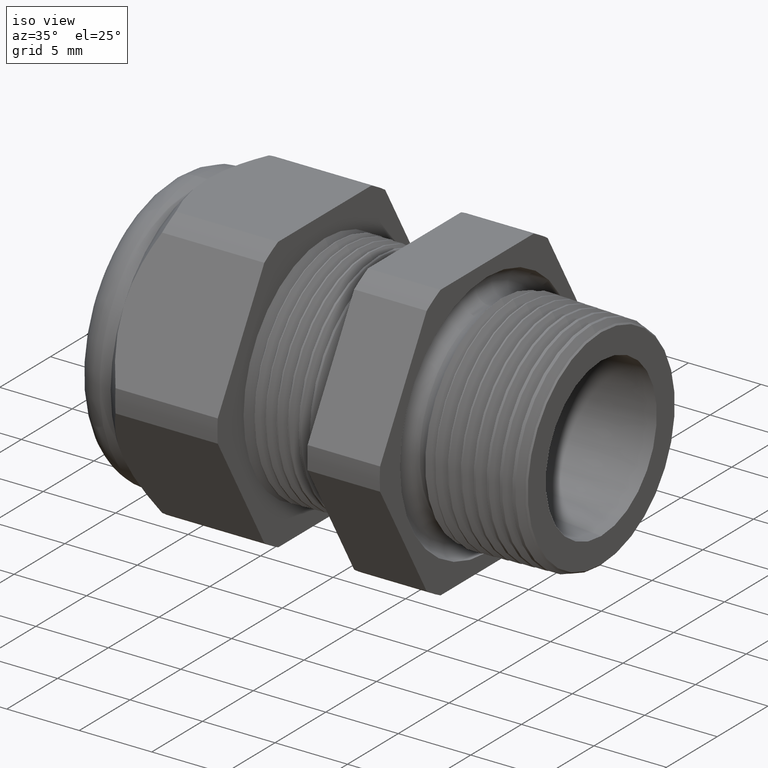
[diagram: clean part render]
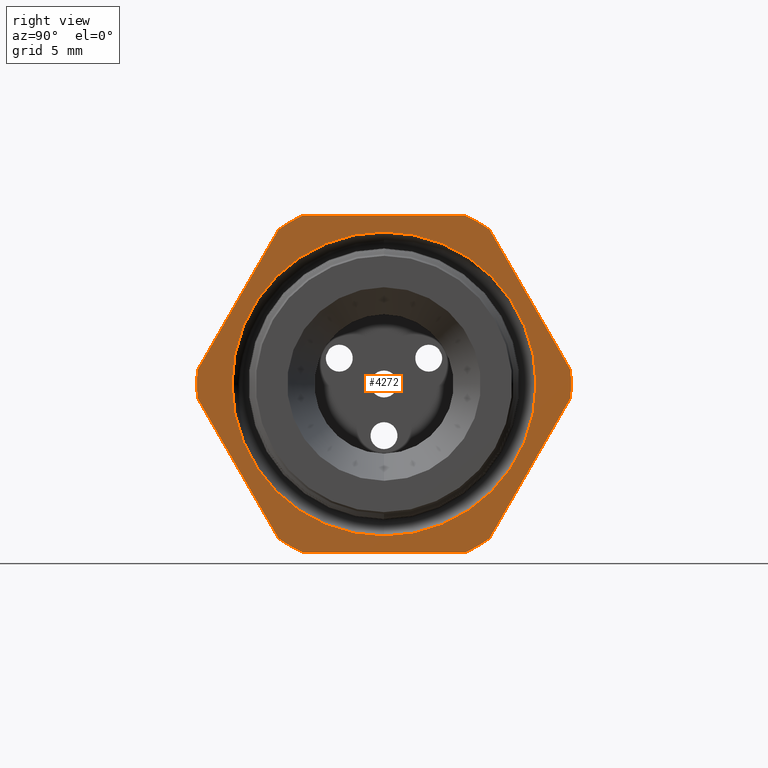
[diagram: tour spotlight — one face highlighted and labeled with its STEP entity id]
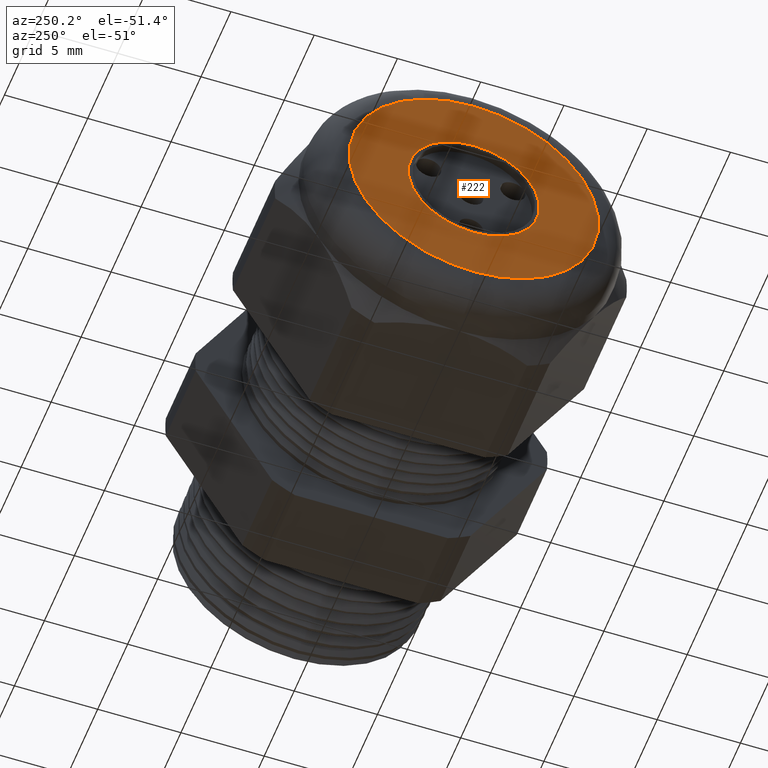
[diagram: tour spotlight — one face highlighted and labeled with its STEP entity id]
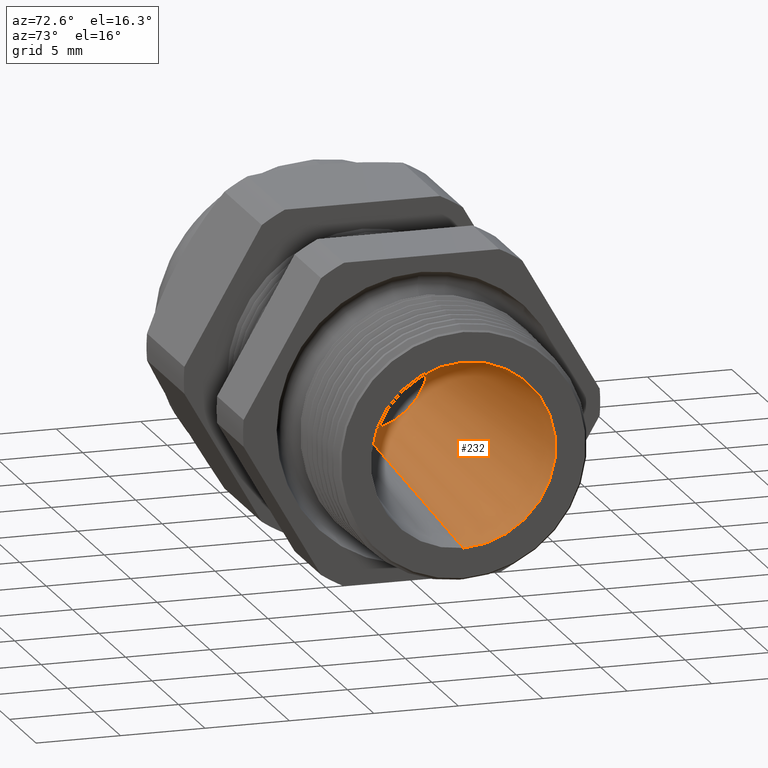
[diagram: tour spotlight — one face highlighted and labeled with its STEP entity id]
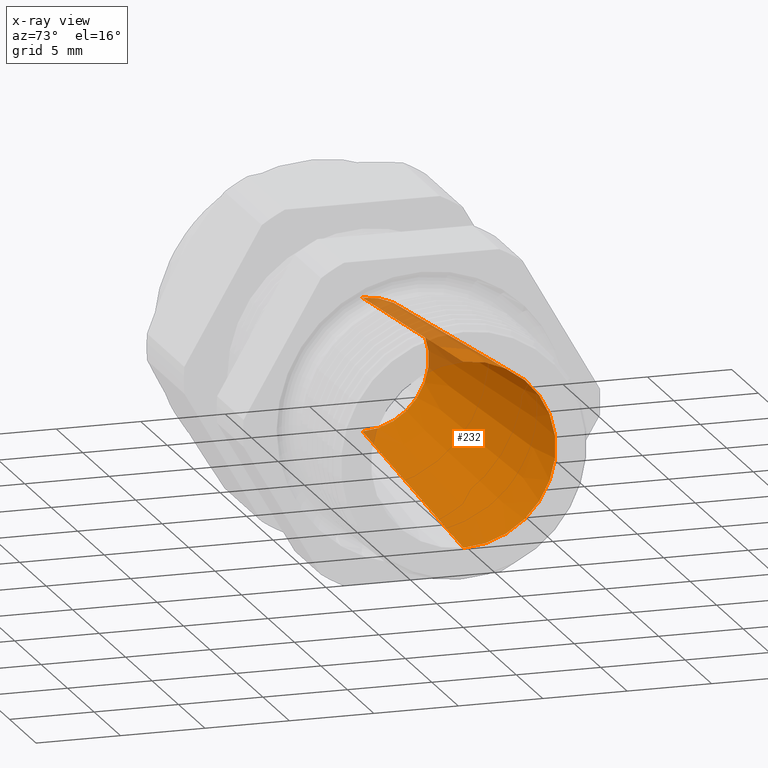
[diagram: x-ray of the same camera — body ghosted, this tour face saturated]
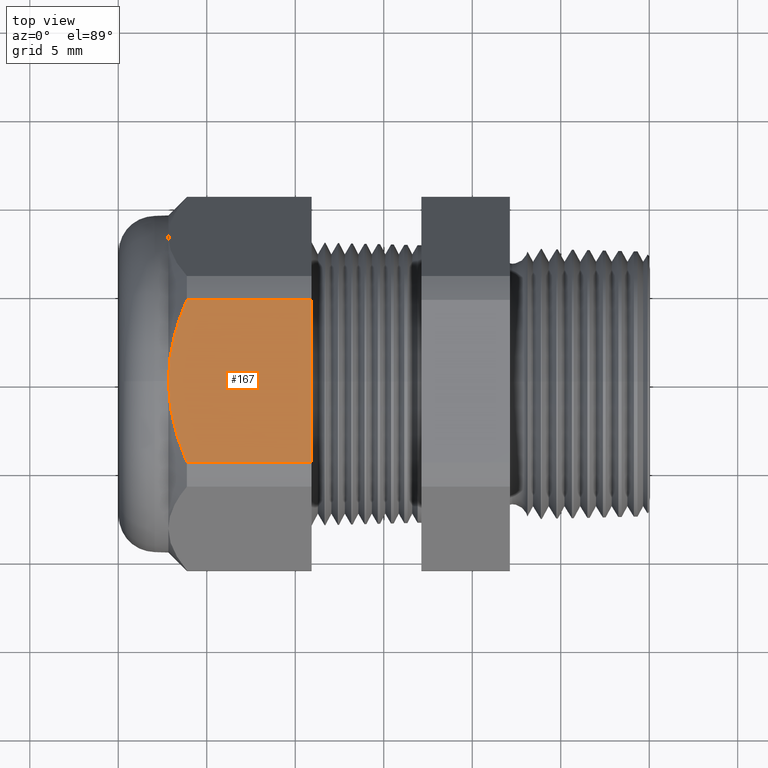
[diagram: tour spotlight — one face highlighted and labeled with its STEP entity id]
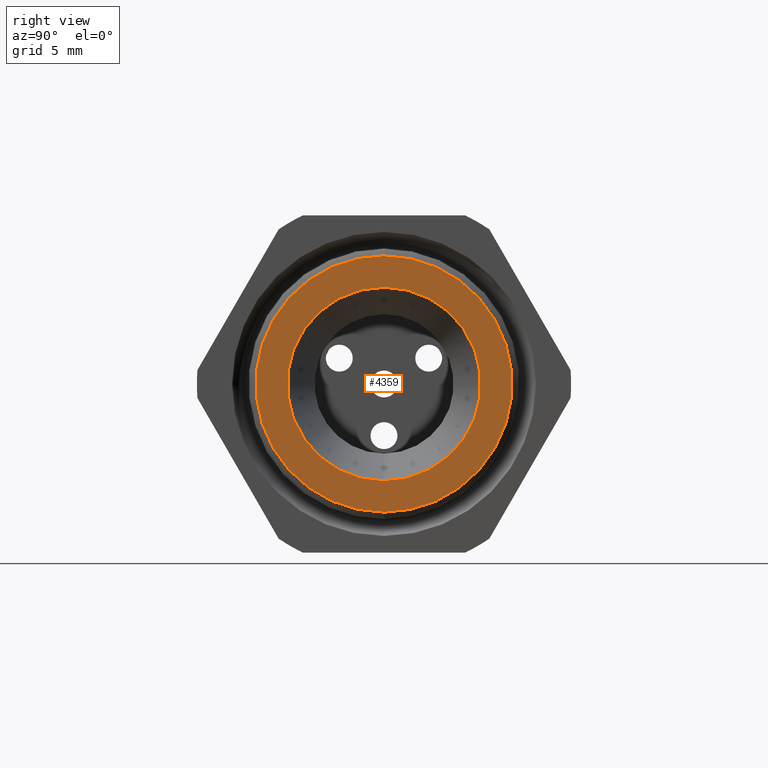
[diagram: tour spotlight — one face highlighted and labeled with its STEP entity id]
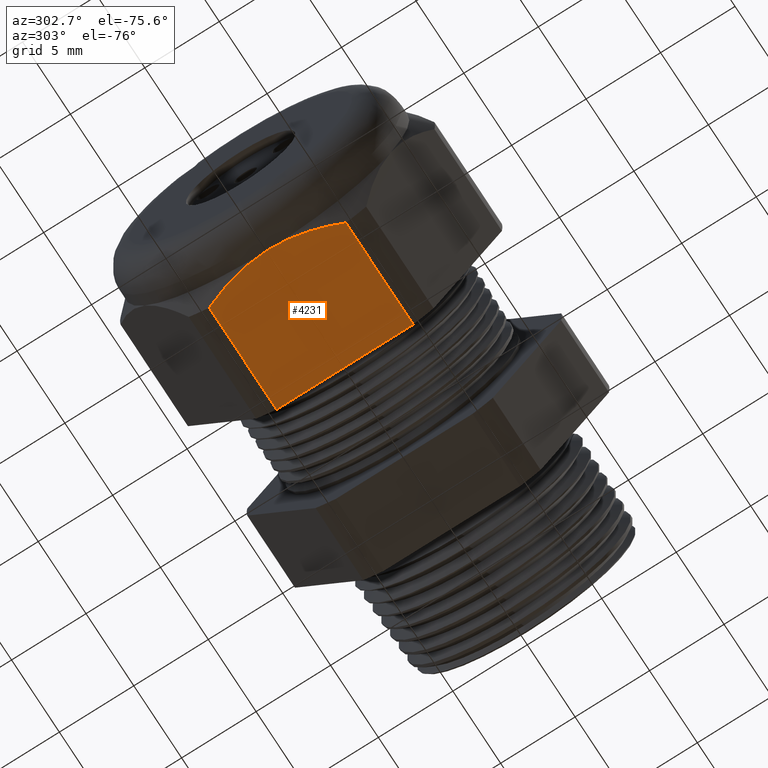
[diagram: tour spotlight — one face highlighted and labeled with its STEP entity id]
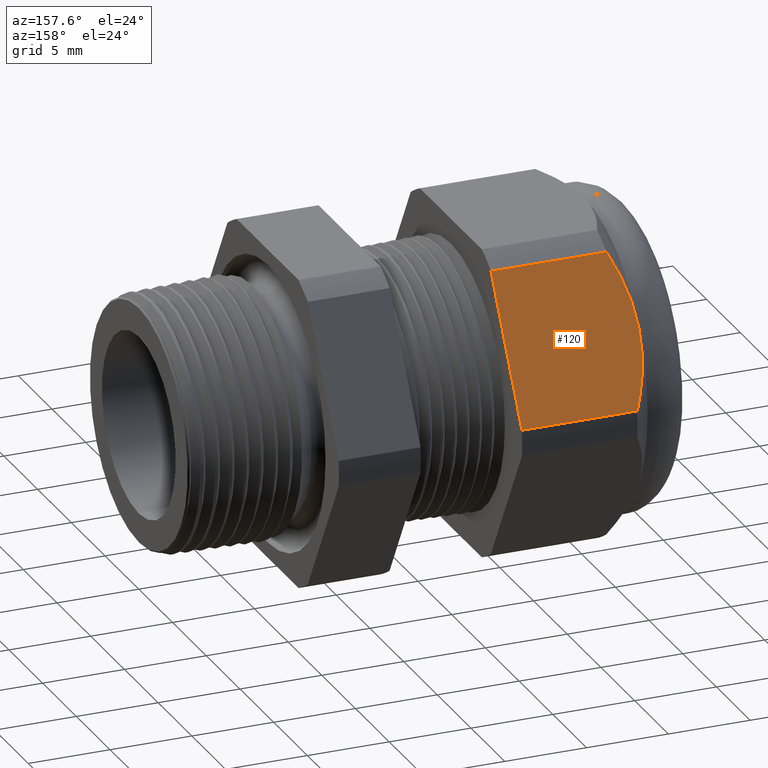
[diagram: tour spotlight — one face highlighted and labeled with its STEP entity id]
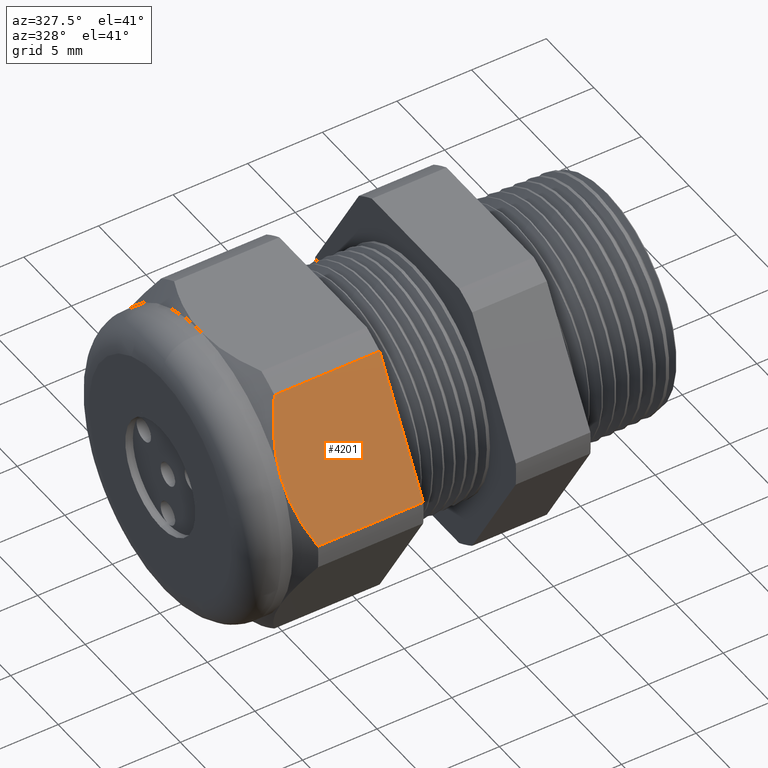
[diagram: tour spotlight — one face highlighted and labeled with its STEP entity id]
A machine part: a face-by-face anatomy tour. The part has 158 B-rep faces; the first image is the clean iso view, then the 8 largest visible faces are spotlighted one at a time (largest first), each with its STEP entity span.

Face 1 — right view, entity #4272. In plain terms, the highlighted planar face has unit normal (1, 0, 0).
Definition (entity closure, byte-faithful):
#684 = VERTEX_POINT ( 'NONE', #2488 ) ;
#685 = VERTEX_POINT ( 'NONE', #2487 ) ;
#687 = EDGE_CURVE ( 'NONE', #685, #684, #2485, .T. ) ;
#2481 = DIRECTION ( 'NONE',  ( 0.0000000000000000000, 0.0000000000000000000, -1.000000000000000000 ) ) ;
#2482 = DIRECTION ( 'NONE',  ( 1.000000000000000000, 0.0000000000000000000, 0.0000000000000000000 ) ) ;
#2483 = CARTESIAN_POINT ( 'NONE',  ( -0.3100000000000000000, 0.0000000000000000000, 0.0000000000000000000 ) ) ;
#2484 = AXIS2_PLACEMENT_3D ( 'NONE', #2483, #2482, #2481 ) ;
#2485 = CIRCLE ( 'NONE', #2484, 0.3380965299414689900 ) ;
#2487 = CARTESIAN_POINT ( 'NONE',  ( -0.3100000000000000000, 4.140488331956472800E-017, 0.3380965299414689900 ) ) ;
#2488 = CARTESIAN_POINT ( 'NONE',  ( -0.3100000000000000000, 0.0000000000000000000, -0.3380965299414689900 ) ) ;
#3980 = DIRECTION ( 'NONE',  ( 0.0000000000000000000, 0.5000000000000001100, 0.8660254037844386000 ) ) ;
#3981 = VECTOR ( 'NONE', #3980, 39.37007874015748900 ) ;
#3982 = CARTESIAN_POINT ( 'NONE',  ( -0.3100000000000000000, 0.5122595264191646100, 0.1372595264191645000 ) ) ;
#3983 = LINE ( 'NONE', #3982, #3981 ) ;
#3984 = CARTESIAN_POINT ( 'NONE',  ( -0.3100000000000000000, 0.2344281053908202900, -0.3439586107409879900 ) ) ;
#4013 = CARTESIAN_POINT ( 'NONE',  ( -0.3100000000000000000, 0.7500000000000001100, 0.3749999999999999400 ) ) ;
#4014 = LINE ( 'NONE', #4013, #4066 ) ;
#4016 = CARTESIAN_POINT ( 'NONE',  ( -0.3100000000000000000, 0.4150909474475088000, 0.03104138925901233200 ) ) ;
#4017 = CARTESIAN_POINT ( 'NONE',  ( -0.3100000000000000000, 0.1806628420566887000, 0.3749999999999999400 ) ) ;
#4022 = DIRECTION ( 'NONE',  ( 0.0000000000000000000, 0.0000000000000000000, -1.000000000000000000 ) ) ;
#4023 = DIRECTION ( 'NONE',  ( 1.000000000000000000, 0.0000000000000000000, 0.0000000000000000000 ) ) ;
#4024 = CARTESIAN_POINT ( 'NONE',  ( -0.3100000000000000000, 0.7500000000000001100, 0.0000000000000000000 ) ) ;
#4025 = AXIS2_PLACEMENT_3D ( 'NONE', #4024, #4023, #4022 ) ;
#4026 = PLANE ( 'NONE',  #4025 ) ;
#4027 = FACE_OUTER_BOUND ( 'NONE', #4264, .T. ) ;
#4028 = FACE_BOUND ( 'NONE', #4270, .T. ) ;
#4029 = DIRECTION ( 'NONE',  ( 0.0000000000000000000, 0.0000000000000000000, -1.000000000000000000 ) ) ;
#4030 = DIRECTION ( 'NONE',  ( 1.000000000000000000, 0.0000000000000000000, 0.0000000000000000000 ) ) ;
#4031 = CARTESIAN_POINT ( 'NONE',  ( -0.3100000000000000000, 0.0000000000000000000, 0.0000000000000000000 ) ) ;
#4032 = AXIS2_PLACEMENT_3D ( 'NONE', #4031, #4030, #4029 ) ;
#4033 = CIRCLE ( 'NONE', #4032, 0.3380965299414689900 ) ;
#4038 = CARTESIAN_POINT ( 'NONE',  ( -0.3100000000000000000, -0.1806628420566883900, -0.3750000000000001100 ) ) ;
#4039 = DIRECTION ( 'NONE',  ( 0.0000000000000000000, 1.000000000000000000, 0.0000000000000000000 ) ) ;
#4040 = VECTOR ( 'NONE', #4039, 39.37007874015748100 ) ;
#4041 = CARTESIAN_POINT ( 'NONE',  ( -0.3100000000000000000, 0.7500000000000001100, -0.3750000000000001100 ) ) ;
#4042 = LINE ( 'NONE', #4041, #4040 ) ;
#4043 = CARTESIAN_POINT ( 'NONE',  ( -0.3100000000000000000, 0.4150909474475088000, -0.03104138925901222000 ) ) ;
#4044 = DIRECTION ( 'NONE',  ( 0.0000000000000000000, 0.0000000000000000000, -1.000000000000000000 ) ) ;
#4045 = DIRECTION ( 'NONE',  ( 1.000000000000000000, 0.0000000000000000000, 0.0000000000000000000 ) ) ;
#4046 = CARTESIAN_POINT ( 'NONE',  ( -0.3100000000000000000, 0.0000000000000000000, 0.0000000000000000000 ) ) ;
#4047 = AXIS2_PLACEMENT_3D ( 'NONE', #4046, #4045, #4044 ) ;
#4048 = CIRCLE ( 'NONE', #4047, 0.4162500000000000100 ) ;
#4049 = DIRECTION ( 'NONE',  ( 0.0000000000000000000, -0.4999999999999998300, 0.8660254037844386000 ) ) ;
#4050 = VECTOR ( 'NONE', #4049, 39.37007874015748900 ) ;
#4051 = CARTESIAN_POINT ( 'NONE',  ( -0.3100000000000000000, 0.5122595264191646100, -0.1372595264191644500 ) ) ;
#4052 = LINE ( 'NONE', #4051, #4050 ) ;
#4053 = DIRECTION ( 'NONE',  ( 0.0000000000000000000, 0.0000000000000000000, -1.000000000000000000 ) ) ;
#4054 = DIRECTION ( 'NONE',  ( 1.000000000000000000, 0.0000000000000000000, 0.0000000000000000000 ) ) ;
#4055 = CARTESIAN_POINT ( 'NONE',  ( -0.3100000000000000000, 0.0000000000000000000, 0.0000000000000000000 ) ) ;
#4056 = AXIS2_PLACEMENT_3D ( 'NONE', #4055, #4054, #4053 ) ;
#4057 = CIRCLE ( 'NONE', #4056, 0.4162499999999999500 ) ;
#4058 = CARTESIAN_POINT ( 'NONE',  ( -0.3100000000000000000, 0.2344281053908206000, 0.3439586107409877100 ) ) ;
#4059 = DIRECTION ( 'NONE',  ( 0.0000000000000000000, 0.0000000000000000000, -1.000000000000000000 ) ) ;
#4060 = DIRECTION ( 'NONE',  ( 1.000000000000000000, 0.0000000000000000000, 0.0000000000000000000 ) ) ;
#4061 = CARTESIAN_POINT ( 'NONE',  ( -0.3100000000000000000, 0.0000000000000000000, 0.0000000000000000000 ) ) ;
#4062 = AXIS2_PLACEMENT_3D ( 'NONE', #4061, #4060, #4059 ) ;
#4063 = CIRCLE ( 'NONE', #4062, 0.4162500000000000100 ) ;
#4064 = CARTESIAN_POINT ( 'NONE',  ( -0.3100000000000000000, -0.1806628420566886700, 0.3749999999999999400 ) ) ;
#4065 = DIRECTION ( 'NONE',  ( 0.0000000000000000000, -1.000000000000000000, 0.0000000000000000000 ) ) ;
#4066 = VECTOR ( 'NONE', #4065, 39.37007874015748100 ) ;
#4081 = DIRECTION ( 'NONE',  ( 0.0000000000000000000, -0.4999999999999998300, -0.8660254037844386000 ) ) ;
#4082 = VECTOR ( 'NONE', #4081, 39.37007874015748900 ) ;
#4083 = CARTESIAN_POINT ( 'NONE',  ( -0.3100000000000000000, -0.1372595264191648300, 0.5122595264191645000 ) ) ;
#4084 = LINE ( 'NONE', #4083, #4082 ) ;
#4085 = CARTESIAN_POINT ( 'NONE',  ( -0.3100000000000000000, -0.2344281053908205100, 0.3439586107409878200 ) ) ;
#4086 = CARTESIAN_POINT ( 'NONE',  ( -0.3100000000000000000, -0.4150909474475088000, 0.03104138925901241800 ) ) ;
#4087 = DIRECTION ( 'NONE',  ( 0.0000000000000000000, 0.0000000000000000000, -1.000000000000000000 ) ) ;
#4088 = DIRECTION ( 'NONE',  ( 1.000000000000000000, 0.0000000000000000000, 0.0000000000000000000 ) ) ;
#4089 = CARTESIAN_POINT ( 'NONE',  ( -0.3100000000000000000, 0.0000000000000000000, 0.0000000000000000000 ) ) ;
#4090 = AXIS2_PLACEMENT_3D ( 'NONE', #4089, #4088, #4087 ) ;
#4091 = CIRCLE ( 'NONE', #4090, 0.4162500000000000100 ) ;
#4092 = CARTESIAN_POINT ( 'NONE',  ( -0.3100000000000000000, -0.4150909474475088000, -0.03104138925901237000 ) ) ;
#4093 = DIRECTION ( 'NONE',  ( 0.0000000000000000000, 0.5000000000000002200, -0.8660254037844384900 ) ) ;
#4094 = VECTOR ( 'NONE', #4093, 39.37007874015748900 ) ;
#4095 = CARTESIAN_POINT ( 'NONE',  ( -0.3100000000000000000, -0.1372595264191642800, -0.5122595264191648300 ) ) ;
#4096 = LINE ( 'NONE', #4095, #4094 ) ;
#4097 = CARTESIAN_POINT ( 'NONE',  ( -0.3100000000000000000, -0.2344281053908202100, -0.3439586107409880500 ) ) ;
#4098 = DIRECTION ( 'NONE',  ( 0.0000000000000000000, 0.0000000000000000000, -1.000000000000000000 ) ) ;
#4099 = DIRECTION ( 'NONE',  ( 1.000000000000000000, 0.0000000000000000000, 0.0000000000000000000 ) ) ;
#4100 = CARTESIAN_POINT ( 'NONE',  ( -0.3100000000000000000, 0.0000000000000000000, 0.0000000000000000000 ) ) ;
#4101 = AXIS2_PLACEMENT_3D ( 'NONE', #4100, #4099, #4098 ) ;
#4102 = CIRCLE ( 'NONE', #4101, 0.4162500000000000100 ) ;
#4110 = CARTESIAN_POINT ( 'NONE',  ( -0.3100000000000000000, 0.1806628420566884800, -0.3750000000000001100 ) ) ;
#4116 = DIRECTION ( 'NONE',  ( 0.0000000000000000000, 0.0000000000000000000, -1.000000000000000000 ) ) ;
#4117 = DIRECTION ( 'NONE',  ( 1.000000000000000000, 0.0000000000000000000, 0.0000000000000000000 ) ) ;
#4118 = CARTESIAN_POINT ( 'NONE',  ( -0.3100000000000000000, 0.0000000000000000000, 0.0000000000000000000 ) ) ;
#4119 = AXIS2_PLACEMENT_3D ( 'NONE', #4118, #4117, #4116 ) ;
#4124 = CIRCLE ( 'NONE', #4119, 0.4162500000000000100 ) ;
#4259 = VERTEX_POINT ( 'NONE', #3984 ) ;
#4260 = EDGE_CURVE ( 'NONE', #4259, #4342, #3983, .T. ) ;
#4263 = ORIENTED_EDGE ( 'NONE', *, *, #4260, .T. ) ;
#4264 = EDGE_LOOP ( 'NONE', ( #4263, #4290, #4288, #4286, #4280, #4282, #4357, #4356, #4350, #4346, #4344, #4368 ) ) ;
#4267 = ORIENTED_EDGE ( 'NONE', *, *, #4269, .F. ) ;
#4268 = ORIENTED_EDGE ( 'NONE', *, *, #687, .F. ) ;
#4269 = EDGE_CURVE ( 'NONE', #684, #685, #4033, .T. ) ;
#4270 = EDGE_LOOP ( 'NONE', ( #4267, #4268 ) ) ;
#4272 = ADVANCED_FACE ( 'NONE', ( #4028, #4027 ), #4026, .T. ) ;
#4275 = VERTEX_POINT ( 'NONE', #4017 ) ;
#4276 = VERTEX_POINT ( 'NONE', #4016 ) ;
#4279 = EDGE_CURVE ( 'NONE', #4275, #4281, #4014, .T. ) ;
#4280 = ORIENTED_EDGE ( 'NONE', *, *, #4279, .T. ) ;
#4281 = VERTEX_POINT ( 'NONE', #4064 ) ;
#4282 = ORIENTED_EDGE ( 'NONE', *, *, #4283, .T. ) ;
#4283 = EDGE_CURVE ( 'NONE', #4281, #4354, #4063, .T. ) ;
#4284 = VERTEX_POINT ( 'NONE', #4058 ) ;
#4285 = EDGE_CURVE ( 'NONE', #4284, #4275, #4057, .T. ) ;
#4286 = ORIENTED_EDGE ( 'NONE', *, *, #4285, .T. ) ;
#4287 = EDGE_CURVE ( 'NONE', #4276, #4284, #4052, .T. ) ;
#4288 = ORIENTED_EDGE ( 'NONE', *, *, #4287, .T. ) ;
#4289 = EDGE_CURVE ( 'NONE', #4342, #4276, #4048, .T. ) ;
#4290 = ORIENTED_EDGE ( 'NONE', *, *, #4289, .T. ) ;
#4342 = VERTEX_POINT ( 'NONE', #4043 ) ;
#4343 = EDGE_CURVE ( 'NONE', #4345, #4371, #4042, .T. ) ;
#4344 = ORIENTED_EDGE ( 'NONE', *, *, #4343, .T. ) ;
#4345 = VERTEX_POINT ( 'NONE', #4038 ) ;
#4346 = ORIENTED_EDGE ( 'NONE', *, *, #4347, .T. ) ;
#4347 = EDGE_CURVE ( 'NONE', #4348, #4345, #4102, .T. ) ;
#4348 = VERTEX_POINT ( 'NONE', #4097 ) ;
#4349 = EDGE_CURVE ( 'NONE', #4351, #4348, #4096, .T. ) ;
#4350 = ORIENTED_EDGE ( 'NONE', *, *, #4349, .T. ) ;
#4351 = VERTEX_POINT ( 'NONE', #4092 ) ;
#4352 = EDGE_CURVE ( 'NONE', #4353, #4351, #4091, .T. ) ;
#4353 = VERTEX_POINT ( 'NONE', #4086 ) ;
#4354 = VERTEX_POINT ( 'NONE', #4085 ) ;
#4355 = EDGE_CURVE ( 'NONE', #4354, #4353, #4084, .T. ) ;
#4356 = ORIENTED_EDGE ( 'NONE', *, *, #4352, .T. ) ;
#4357 = ORIENTED_EDGE ( 'NONE', *, *, #4355, .T. ) ;
#4368 = ORIENTED_EDGE ( 'NONE', *, *, #4369, .T. ) ;
#4369 = EDGE_CURVE ( 'NONE', #4371, #4259, #4124, .T. ) ;
#4371 = VERTEX_POINT ( 'NONE', #4110 ) ;

Face 2 — auxiliary view, entity #222. In plain terms, the highlighted planar face has unit normal (-1, 0, 0).
Definition (entity closure, byte-faithful):
#201 = EDGE_CURVE ( 'NONE', #1170, #1173, #1804, .T. ) ;
#202 = EDGE_LOOP ( 'NONE', ( #203, #204 ) ) ;
#203 = ORIENTED_EDGE ( 'NONE', *, *, #219, .T. ) ;
#204 = ORIENTED_EDGE ( 'NONE', *, *, #1106, .T. ) ;
#219 = EDGE_CURVE ( 'NONE', #1108, #1107, #1842, .T. ) ;
#222 = ADVANCED_FACE ( 'NONE', ( #1838, #1837 ), #1836, .T. ) ;
#223 = EDGE_LOOP ( 'NONE', ( #224, #1409 ) ) ;
#224 = ORIENTED_EDGE ( 'NONE', *, *, #1172, .T. ) ;
#1106 = EDGE_CURVE ( 'NONE', #1107, #1108, #3316, .T. ) ;
#1107 = VERTEX_POINT ( 'NONE', #3311 ) ;
#1108 = VERTEX_POINT ( 'NONE', #3310 ) ;
#1170 = VERTEX_POINT ( 'NONE', #3435 ) ;
#1172 = EDGE_CURVE ( 'NONE', #1173, #1170, #3434, .T. ) ;
#1173 = VERTEX_POINT ( 'NONE', #3429 ) ;
#1409 = ORIENTED_EDGE ( 'NONE', *, *, #201, .T. ) ;
#1800 = DIRECTION ( 'NONE',  ( 0.0000000000000000000, 0.0000000000000000000, 1.000000000000000000 ) ) ;
#1801 = DIRECTION ( 'NONE',  ( -1.000000000000000000, 0.0000000000000000000, 0.0000000000000000000 ) ) ;
#1802 = CARTESIAN_POINT ( 'NONE',  ( -1.179999999999999900, 0.0000000000000000000, 0.0000000000000000000 ) ) ;
#1803 = AXIS2_PLACEMENT_3D ( 'NONE', #1802, #1801, #1800 ) ;
#1804 = CIRCLE ( 'NONE', #1803, 0.2950000000000001000 ) ;
#1832 = DIRECTION ( 'NONE',  ( 0.0000000000000000000, 0.0000000000000000000, 1.000000000000000000 ) ) ;
#1833 = DIRECTION ( 'NONE',  ( -1.000000000000000000, 0.0000000000000000000, 0.0000000000000000000 ) ) ;
#1834 = CARTESIAN_POINT ( 'NONE',  ( -1.179999999999999900, 0.3750000000000000600, 0.0000000000000000000 ) ) ;
#1835 = AXIS2_PLACEMENT_3D ( 'NONE', #1834, #1833, #1832 ) ;
#1836 = PLANE ( 'NONE',  #1835 ) ;
#1837 = FACE_BOUND ( 'NONE', #202, .T. ) ;
#1838 = FACE_OUTER_BOUND ( 'NONE', #223, .T. ) ;
#1839 = DIRECTION ( 'NONE',  ( 0.0000000000000000000, 0.0000000000000000000, -1.000000000000000000 ) ) ;
#1840 = DIRECTION ( 'NONE',  ( 1.000000000000000000, 0.0000000000000000000, 0.0000000000000000000 ) ) ;
#1841 = AXIS2_PLACEMENT_3D ( 'NONE', #1847, #1840, #1839 ) ;
#1842 = CIRCLE ( 'NONE', #1841, 0.1550000000000000000 ) ;
#1847 = CARTESIAN_POINT ( 'NONE',  ( -1.179999999999999900, 0.0000000000000000000, 0.0000000000000000000 ) ) ;
#3310 = CARTESIAN_POINT ( 'NONE',  ( -1.179999999999999900, 0.0000000000000000000, -0.1550000000000000000 ) ) ;
#3311 = CARTESIAN_POINT ( 'NONE',  ( -1.179999999999999900, 1.898202538678397300E-017, 0.1550000000000000000 ) ) ;
#3312 = DIRECTION ( 'NONE',  ( 0.0000000000000000000, 0.0000000000000000000, -1.000000000000000000 ) ) ;
#3313 = DIRECTION ( 'NONE',  ( 1.000000000000000000, 0.0000000000000000000, 0.0000000000000000000 ) ) ;
#3314 = CARTESIAN_POINT ( 'NONE',  ( -1.179999999999999900, 0.0000000000000000000, 0.0000000000000000000 ) ) ;
#3315 = AXIS2_PLACEMENT_3D ( 'NONE', #3314, #3313, #3312 ) ;
#3316 = CIRCLE ( 'NONE', #3315, 0.1550000000000000000 ) ;
#3429 = CARTESIAN_POINT ( 'NONE',  ( -1.179999999999999900, 0.0000000000000000000, 0.2950000000000001000 ) ) ;
#3430 = DIRECTION ( 'NONE',  ( 0.0000000000000000000, 0.0000000000000000000, 1.000000000000000000 ) ) ;
#3431 = DIRECTION ( 'NONE',  ( -1.000000000000000000, 0.0000000000000000000, 0.0000000000000000000 ) ) ;
#3432 = CARTESIAN_POINT ( 'NONE',  ( -1.179999999999999900, 0.0000000000000000000, 0.0000000000000000000 ) ) ;
#3433 = AXIS2_PLACEMENT_3D ( 'NONE', #3432, #3431, #3430 ) ;
#3434 = CIRCLE ( 'NONE', #3433, 0.2950000000000001000 ) ;
#3435 = CARTESIAN_POINT ( 'NONE',  ( -1.179999999999999900, 4.102566777143634000E-017, -0.2950000000000001000 ) ) ;

Face 3 — auxiliary view, entity #232. An x-ray twin of the same camera follows (body ghosted, this face saturated) — the face is partly hidden behind the body. In plain terms, the highlighted conical surface has half-angle 4.594 deg.
Definition (entity closure, byte-faithful):
#213 = ORIENTED_EDGE ( 'NONE', *, *, #1327, .T. ) ;
#214 = ORIENTED_EDGE ( 'NONE', *, *, #230, .T. ) ;
#230 = EDGE_CURVE ( 'NONE', #1147, #1121, #1826, .T. ) ;
#232 = ADVANCED_FACE ( 'NONE', ( #1821 ), #1820, .F. ) ;
#1111 = VERTEX_POINT ( 'NONE', #3305 ) ;
#1114 = VERTEX_POINT ( 'NONE', #3299 ) ;
#1121 = VERTEX_POINT ( 'NONE', #3293 ) ;
#1144 = EDGE_CURVE ( 'NONE', #1111, #1121, #3366, .T. ) ;
#1147 = VERTEX_POINT ( 'NONE', #3357 ) ;
#1327 = EDGE_CURVE ( 'NONE', #1114, #1147, #3671, .T. ) ;
#1820 = CONICAL_SURFACE ( 'NONE', #1882, 0.1550000000000000000, 0.08018540344487304300 ) ;
#1821 = FACE_OUTER_BOUND ( 'NONE', #4372, .T. ) ;
#1822 = DIRECTION ( 'NONE',  ( 0.0000000000000000000, 0.0000000000000000000, -1.000000000000000000 ) ) ;
#1823 = DIRECTION ( 'NONE',  ( 1.000000000000000000, 0.0000000000000000000, 0.0000000000000000000 ) ) ;
#1824 = CARTESIAN_POINT ( 'NONE',  ( 0.0000000000000000000, 0.0000000000000000000, 0.0000000000000000000 ) ) ;
#1825 = AXIS2_PLACEMENT_3D ( 'NONE', #1824, #1823, #1822 ) ;
#1826 = CIRCLE ( 'NONE', #1825, 0.2153378781036457400 ) ;
#1879 = DIRECTION ( 'NONE',  ( 0.0000000000000000000, 0.0000000000000000000, -1.000000000000000000 ) ) ;
#1880 = DIRECTION ( 'NONE',  ( 1.000000000000000000, 0.0000000000000000000, 0.0000000000000000000 ) ) ;
#1881 = CARTESIAN_POINT ( 'NONE',  ( -0.7508661417322833900, 0.0000000000000000000, 0.0000000000000000000 ) ) ;
#1882 = AXIS2_PLACEMENT_3D ( 'NONE', #1881, #1880, #1879 ) ;
#3293 = CARTESIAN_POINT ( 'NONE',  ( 0.0000000000000000000, 2.637128431548127100E-017, 0.2153378781036457400 ) ) ;
#3299 = CARTESIAN_POINT ( 'NONE',  ( -0.7508661417322833900, 0.0000000000000000000, -0.1550000000000000000 ) ) ;
#3305 = CARTESIAN_POINT ( 'NONE',  ( -0.7508661417322833900, 2.267665485113262000E-017, 0.1550000000000000000 ) ) ;
#3357 = CARTESIAN_POINT ( 'NONE',  ( 0.0000000000000000000, 0.0000000000000000000, -0.2153378781036457400 ) ) ;
#3363 = DIRECTION ( 'NONE',  ( 0.9967868727108976100, 9.809360004160878300E-018, 0.08009950306480641300 ) ) ;
#3364 = VECTOR ( 'NONE', #3363, 39.37007874015748900 ) ;
#3365 = CARTESIAN_POINT ( 'NONE',  ( -0.7508661417322833900, 1.898202538678397300E-017, 0.1550000000000000000 ) ) ;
#3366 = LINE ( 'NONE', #3365, #3364 ) ;
#3671 = LINE ( 'NONE', #3737, #3736 ) ;
#3735 = DIRECTION ( 'NONE',  ( 0.9967868727108976100, 0.0000000000000000000, -0.08009950306480641300 ) ) ;
#3736 = VECTOR ( 'NONE', #3735, 39.37007874015748900 ) ;
#3737 = CARTESIAN_POINT ( 'NONE',  ( -0.7508661417322833900, 0.0000000000000000000, -0.1550000000000000000 ) ) ;
#4111 = DIRECTION ( 'NONE',  ( 0.0000000000000000000, 0.0000000000000000000, -1.000000000000000000 ) ) ;
#4112 = DIRECTION ( 'NONE',  ( 1.000000000000000000, 0.0000000000000000000, 0.0000000000000000000 ) ) ;
#4113 = CARTESIAN_POINT ( 'NONE',  ( -0.7508661417322833900, 0.0000000000000000000, 0.0000000000000000000 ) ) ;
#4114 = AXIS2_PLACEMENT_3D ( 'NONE', #4113, #4112, #4111 ) ;
#4115 = CIRCLE ( 'NONE', #4114, 0.1550000000000000000 ) ;
#4370 = EDGE_CURVE ( 'NONE', #1114, #1111, #4115, .T. ) ;
#4372 = EDGE_LOOP ( 'NONE', ( #4374, #4373, #213, #214 ) ) ;
#4373 = ORIENTED_EDGE ( 'NONE', *, *, #4370, .F. ) ;
#4374 = ORIENTED_EDGE ( 'NONE', *, *, #1144, .F. ) ;

Face 4 — top view, entity #167. In plain terms, the highlighted planar face has unit normal (0, 0, 1).
Definition (entity closure, byte-faithful):
#161 = VERTEX_POINT ( 'NONE', #1712 ) ;
#163 = EDGE_CURVE ( 'NONE', #164, #161, #1711, .T. ) ;
#164 = VERTEX_POINT ( 'NONE', #1707 ) ;
#167 = ADVANCED_FACE ( 'NONE', ( #1701 ), #1754, .T. ) ;
#168 = EDGE_LOOP ( 'NONE', ( #169, #170, #4383, #4380, #4376 ) ) ;
#169 = ORIENTED_EDGE ( 'NONE', *, *, #163, .T. ) ;
#170 = ORIENTED_EDGE ( 'NONE', *, *, #171, .T. ) ;
#171 = EDGE_CURVE ( 'NONE', #161, #1133, #1749, .T. ) ;
#1133 = VERTEX_POINT ( 'NONE', #3328 ) ;
#1701 = FACE_OUTER_BOUND ( 'NONE', #168, .T. ) ;
#1707 = CARTESIAN_POINT ( 'NONE',  ( -0.7508661417322833900, 0.1806628420566887000, 0.3749999999999999400 ) ) ;
#1708 = DIRECTION ( 'NONE',  ( -1.000000000000000000, 0.0000000000000000000, 0.0000000000000000000 ) ) ;
#1709 = VECTOR ( 'NONE', #1708, 39.37007874015748100 ) ;
#1710 = CARTESIAN_POINT ( 'NONE',  ( 0.0000000000000000000, 0.1806628420566887000, 0.3749999999999999400 ) ) ;
#1711 = LINE ( 'NONE', #1710, #1709 ) ;
#1712 = CARTESIAN_POINT ( 'NONE',  ( -1.028513779527559200, 0.1806628420566886700, 0.3749999999999999400 ) ) ;
#1741 = CARTESIAN_POINT ( 'NONE',  ( -1.069763779527559200, 0.0000000000000000000, 0.3749999999999999400 ) ) ;
#1742 = CARTESIAN_POINT ( 'NONE',  ( -1.069763779527559200, 0.01568637131276643900, 0.3749999999999999400 ) ) ;
#1743 = CARTESIAN_POINT ( 'NONE',  ( -1.068769479952294000, 0.03130286613836866200, 0.3749999999999999400 ) ) ;
#1744 = CARTESIAN_POINT ( 'NONE',  ( -1.064967165678735000, 0.06207756443688122000, 0.3749999999999999400 ) ) ;
#1745 = CARTESIAN_POINT ( 'NONE',  ( -1.062160678549065200, 0.07729185397029263200, 0.3749999999999998900 ) ) ;
#1746 = CARTESIAN_POINT ( 'NONE',  ( -1.051355067212263800, 0.1224785947535363500, 0.3749999999999999400 ) ) ;
#1747 = CARTESIAN_POINT ( 'NONE',  ( -1.040859887633265300, 0.1522172168218790000, 0.3749999999999999400 ) ) ;
#1748 = CARTESIAN_POINT ( 'NONE',  ( -1.028513779527559200, 0.1806628420566886700, 0.3749999999999999400 ) ) ;
#1749 = B_SPLINE_CURVE_WITH_KNOTS ( 'NONE', 3,
 ( #1748, #1747, #1746, #1745, #1744, #1743, #1742, #1741 ),
 .UNSPECIFIED., .F., .F.,
 ( 4, 2, 2, 4 ),
 ( 0.007228053594460296900, 0.009573670341338588700, 0.01074647871477773400, 0.01191928708821687900 ),
 .UNSPECIFIED. ) ;
#1750 = DIRECTION ( 'NONE',  ( 1.000000000000000000, 0.0000000000000000000, 0.0000000000000000000 ) ) ;
#1751 = DIRECTION ( 'NONE',  ( 0.0000000000000000000, 0.0000000000000000000, 1.000000000000000000 ) ) ;
#1752 = CARTESIAN_POINT ( 'NONE',  ( 0.0000000000000000000, -0.1806628420566887000, 0.3749999999999999400 ) ) ;
#1753 = AXIS2_PLACEMENT_3D ( 'NONE', #1752, #1751, #1750 ) ;
#1754 = PLANE ( 'NONE',  #1753 ) ;
#3328 = CARTESIAN_POINT ( 'NONE',  ( -1.069763779527559200, 0.0000000000000000000, 0.3749999999999999400 ) ) ;
#4103 = CARTESIAN_POINT ( 'NONE',  ( -1.028513779527559200, -0.1806628420566886700, 0.3749999999999999400 ) ) ;
#4104 = DIRECTION ( 'NONE',  ( 0.0000000000000000000, -1.000000000000000000, 0.0000000000000000000 ) ) ;
#4105 = VECTOR ( 'NONE', #4104, 39.37007874015748100 ) ;
#4106 = CARTESIAN_POINT ( 'NONE',  ( -0.7508661417322833900, 0.3150000000000000000, 0.3749999999999999400 ) ) ;
#4107 = LINE ( 'NONE', #4106, #4105 ) ;
#4108 = CARTESIAN_POINT ( 'NONE',  ( -0.7508661417322833900, -0.1806628420566886700, 0.3749999999999999400 ) ) ;
#4148 = CARTESIAN_POINT ( 'NONE',  ( -1.028513779527559200, -0.1806628420566886700, 0.3749999999999999400 ) ) ;
#4149 = CARTESIAN_POINT ( 'NONE',  ( -1.040864619919064100, -0.1522063135617434100, 0.3749999999999999400 ) ) ;
#4150 = CARTESIAN_POINT ( 'NONE',  ( -1.051374803848830600, -0.1224209746056499500, 0.3750000000000000600 ) ) ;
#4151 = CARTESIAN_POINT ( 'NONE',  ( -1.065781561248279700, -0.06212512060126269800, 0.3749999999999999400 ) ) ;
#4152 = CARTESIAN_POINT ( 'NONE',  ( -1.069763779527558500, -0.03141195411055331500, 0.3750000000000000600 ) ) ;
#4153 = CARTESIAN_POINT ( 'NONE',  ( -1.069763779527559200, 0.0000000000000000000, 0.3749999999999999400 ) ) ;
#4154 = B_SPLINE_CURVE_WITH_KNOTS ( 'NONE', 3,
 ( #4153, #4152, #4151, #4150, #4149, #4148 ),
 .UNSPECIFIED., .F., .F.,
 ( 4, 2, 4 ),
 ( 0.01191928708821687900, 0.01426783552382355000, 0.01661638395943022100 ),
 .UNSPECIFIED. ) ;
#4155 = DIRECTION ( 'NONE',  ( -1.000000000000000000, 0.0000000000000000000, 0.0000000000000000000 ) ) ;
#4156 = VECTOR ( 'NONE', #4155, 39.37007874015748100 ) ;
#4157 = CARTESIAN_POINT ( 'NONE',  ( 0.0000000000000000000, -0.1806628420566886700, 0.3749999999999999400 ) ) ;
#4158 = LINE ( 'NONE', #4157, #4156 ) ;
#4376 = ORIENTED_EDGE ( 'NONE', *, *, #4378, .F. ) ;
#4377 = VERTEX_POINT ( 'NONE', #4108 ) ;
#4378 = EDGE_CURVE ( 'NONE', #164, #4377, #4107, .T. ) ;
#4379 = VERTEX_POINT ( 'NONE', #4103 ) ;
#4380 = ORIENTED_EDGE ( 'NONE', *, *, #4381, .F. ) ;
#4381 = EDGE_CURVE ( 'NONE', #4377, #4379, #4158, .T. ) ;
#4382 = EDGE_CURVE ( 'NONE', #1133, #4379, #4154, .T. ) ;
#4383 = ORIENTED_EDGE ( 'NONE', *, *, #4382, .T. ) ;

Face 5 — right view, entity #4359. In plain terms, the highlighted planar face has unit normal (1, 0, 0).
Definition (entity closure, byte-faithful):
#225 = ORIENTED_EDGE ( 'NONE', *, *, #226, .T. ) ;
#226 = EDGE_CURVE ( 'NONE', #1064, #1075, #1831, .T. ) ;
#227 = ORIENTED_EDGE ( 'NONE', *, *, #1143, .T. ) ;
#228 = EDGE_LOOP ( 'NONE', ( #229, #231 ) ) ;
#229 = ORIENTED_EDGE ( 'NONE', *, *, #230, .F. ) ;
#230 = EDGE_CURVE ( 'NONE', #1147, #1121, #1826, .T. ) ;
#231 = ORIENTED_EDGE ( 'NONE', *, *, #1146, .F. ) ;
#1064 = VERTEX_POINT ( 'NONE', #3208 ) ;
#1075 = VERTEX_POINT ( 'NONE', #3249 ) ;
#1121 = VERTEX_POINT ( 'NONE', #3293 ) ;
#1143 = EDGE_CURVE ( 'NONE', #1075, #1064, #3371, .T. ) ;
#1146 = EDGE_CURVE ( 'NONE', #1121, #1147, #3362, .T. ) ;
#1147 = VERTEX_POINT ( 'NONE', #3357 ) ;
#1822 = DIRECTION ( 'NONE',  ( 0.0000000000000000000, 0.0000000000000000000, -1.000000000000000000 ) ) ;
#1823 = DIRECTION ( 'NONE',  ( 1.000000000000000000, 0.0000000000000000000, 0.0000000000000000000 ) ) ;
#1824 = CARTESIAN_POINT ( 'NONE',  ( 0.0000000000000000000, 0.0000000000000000000, 0.0000000000000000000 ) ) ;
#1825 = AXIS2_PLACEMENT_3D ( 'NONE', #1824, #1823, #1822 ) ;
#1826 = CIRCLE ( 'NONE', #1825, 0.2153378781036457400 ) ;
#1827 = DIRECTION ( 'NONE',  ( 0.0000000000000000000, 0.0000000000000000000, -1.000000000000000000 ) ) ;
#1828 = DIRECTION ( 'NONE',  ( 1.000000000000000000, 0.0000000000000000000, 0.0000000000000000000 ) ) ;
#1829 = CARTESIAN_POINT ( 'NONE',  ( 0.0000000000000000000, 0.0000000000000000000, 0.0000000000000000000 ) ) ;
#1830 = AXIS2_PLACEMENT_3D ( 'NONE', #1829, #1828, #1827 ) ;
#1831 = CIRCLE ( 'NONE', #1830, 0.2850654573752167700 ) ;
#3208 = CARTESIAN_POINT ( 'NONE',  ( 0.0000000000000000000, 0.0000000000000000000, 0.2850654573752167700 ) ) ;
#3249 = CARTESIAN_POINT ( 'NONE',  ( 0.0000000000000000000, 3.514901010436652100E-017, -0.2850654573752167700 ) ) ;
#3293 = CARTESIAN_POINT ( 'NONE',  ( 0.0000000000000000000, 2.637128431548127100E-017, 0.2153378781036457400 ) ) ;
#3357 = CARTESIAN_POINT ( 'NONE',  ( 0.0000000000000000000, 0.0000000000000000000, -0.2153378781036457400 ) ) ;
#3358 = DIRECTION ( 'NONE',  ( 0.0000000000000000000, 0.0000000000000000000, -1.000000000000000000 ) ) ;
#3359 = DIRECTION ( 'NONE',  ( 1.000000000000000000, 0.0000000000000000000, 0.0000000000000000000 ) ) ;
#3360 = CARTESIAN_POINT ( 'NONE',  ( 0.0000000000000000000, 0.0000000000000000000, 0.0000000000000000000 ) ) ;
#3361 = AXIS2_PLACEMENT_3D ( 'NONE', #3360, #3359, #3358 ) ;
#3362 = CIRCLE ( 'NONE', #3361, 0.2153378781036457400 ) ;
#3367 = DIRECTION ( 'NONE',  ( 0.0000000000000000000, 0.0000000000000000000, -1.000000000000000000 ) ) ;
#3368 = DIRECTION ( 'NONE',  ( 1.000000000000000000, 0.0000000000000000000, 0.0000000000000000000 ) ) ;
#3369 = CARTESIAN_POINT ( 'NONE',  ( 0.0000000000000000000, 0.0000000000000000000, 0.0000000000000000000 ) ) ;
#3370 = AXIS2_PLACEMENT_3D ( 'NONE', #3369, #3368, #3367 ) ;
#3371 = CIRCLE ( 'NONE', #3370, 0.2850654573752167700 ) ;
#4074 = DIRECTION ( 'NONE',  ( 0.0000000000000000000, 0.0000000000000000000, -1.000000000000000000 ) ) ;
#4075 = DIRECTION ( 'NONE',  ( 1.000000000000000000, 0.0000000000000000000, 0.0000000000000000000 ) ) ;
#4076 = CARTESIAN_POINT ( 'NONE',  ( 0.0000000000000000000, 0.2153378781036457400, 0.0000000000000000000 ) ) ;
#4077 = AXIS2_PLACEMENT_3D ( 'NONE', #4076, #4075, #4074 ) ;
#4078 = PLANE ( 'NONE',  #4077 ) ;
#4079 = FACE_BOUND ( 'NONE', #228, .T. ) ;
#4080 = FACE_OUTER_BOUND ( 'NONE', #4358, .T. ) ;
#4358 = EDGE_LOOP ( 'NONE', ( #225, #227 ) ) ;
#4359 = ADVANCED_FACE ( 'NONE', ( #4080, #4079 ), #4078, .T. ) ;

Face 6 — auxiliary view, entity #4231. In plain terms, the highlighted planar face has unit normal (0, 0, -1).
Definition (entity closure, byte-faithful):
#1184 = VERTEX_POINT ( 'NONE', #3475 ) ;
#2434 = CARTESIAN_POINT ( 'NONE',  ( -1.051355067212263800, 0.1224785947535363100, -0.3750000000000001100 ) ) ;
#2692 = CARTESIAN_POINT ( 'NONE',  ( -1.040859887633264900, 0.1522172168218788600, -0.3750000000000000600 ) ) ;
#2940 = CARTESIAN_POINT ( 'NONE',  ( -1.028513779527559200, 0.1806628420566884200, -0.3750000000000000600 ) ) ;
#3475 = CARTESIAN_POINT ( 'NONE',  ( -1.069763779527559200, 0.0000000000000000000, -0.3750000000000001100 ) ) ;
#3866 = CARTESIAN_POINT ( 'NONE',  ( -0.7508661417322833900, -0.1806628420566883900, -0.3750000000000001100 ) ) ;
#3867 = CARTESIAN_POINT ( 'NONE',  ( -1.028513779527559200, 0.1806628420566884200, -0.3750000000000000600 ) ) ;
#3897 = DIRECTION ( 'NONE',  ( -1.000000000000000000, 0.0000000000000000000, 0.0000000000000000000 ) ) ;
#3898 = DIRECTION ( 'NONE',  ( 0.0000000000000000000, 0.0000000000000000000, -1.000000000000000000 ) ) ;
#3899 = CARTESIAN_POINT ( 'NONE',  ( 0.0000000000000000000, 0.1806628420566883900, -0.3750000000000001100 ) ) ;
#3900 = AXIS2_PLACEMENT_3D ( 'NONE', #3899, #3898, #3897 ) ;
#3901 = PLANE ( 'NONE',  #3900 ) ;
#3902 = FACE_OUTER_BOUND ( 'NONE', #4229, .T. ) ;
#3928 = DIRECTION ( 'NONE',  ( 0.0000000000000000000, 1.000000000000000000, 0.0000000000000000000 ) ) ;
#3929 = VECTOR ( 'NONE', #3928, 39.37007874015748100 ) ;
#3930 = CARTESIAN_POINT ( 'NONE',  ( -0.7508661417322833900, 0.3150000000000000000, -0.3750000000000001100 ) ) ;
#3936 = LINE ( 'NONE', #3930, #3929 ) ;
#3938 = DIRECTION ( 'NONE',  ( -1.000000000000000000, 0.0000000000000000000, 0.0000000000000000000 ) ) ;
#3939 = VECTOR ( 'NONE', #3938, 39.37007874015748100 ) ;
#3940 = CARTESIAN_POINT ( 'NONE',  ( 0.0000000000000000000, -0.1806628420566883900, -0.3750000000000001100 ) ) ;
#3941 = LINE ( 'NONE', #3940, #3939 ) ;
#3942 = CARTESIAN_POINT ( 'NONE',  ( -1.028513779527559200, -0.1806628420566883700, -0.3750000000000001100 ) ) ;
#3954 = CARTESIAN_POINT ( 'NONE',  ( -1.062160678549065200, 0.07729185397029268700, -0.3750000000000001100 ) ) ;
#3955 = CARTESIAN_POINT ( 'NONE',  ( -1.064967165678734700, 0.06207756443688126900, -0.3750000000000001100 ) ) ;
#3956 = CARTESIAN_POINT ( 'NONE',  ( -1.068769479952293800, 0.03130286613836874600, -0.3750000000000001100 ) ) ;
#3957 = CARTESIAN_POINT ( 'NONE',  ( -1.069763779527558700, 0.01568637131276648400, -0.3750000000000001100 ) ) ;
#3958 = CARTESIAN_POINT ( 'NONE',  ( -1.069763779527559200, 0.0000000000000000000, -0.3750000000000001100 ) ) ;
#3960 = B_SPLINE_CURVE_WITH_KNOTS ( 'NONE', 3,
 ( #3958, #3957, #3956, #3955, #3954, #2434, #2692, #2940 ),
 .UNSPECIFIED., .F., .F.,
 ( 4, 2, 2, 4 ),
 ( 0.01136407599362878800, 0.01253729531775339900, 0.01371051464187801100, 0.01605695329012723400 ),
 .UNSPECIFIED. ) ;
#3962 = CARTESIAN_POINT ( 'NONE',  ( -1.069763779527559200, 0.0000000000000000000, -0.3750000000000001100 ) ) ;
#3963 = CARTESIAN_POINT ( 'NONE',  ( -1.069763779527559000, -0.03141195411055319700, -0.3750000000000001100 ) ) ;
#3964 = CARTESIAN_POINT ( 'NONE',  ( -1.065781561248279100, -0.06212512060126249700, -0.3750000000000001100 ) ) ;
#3965 = CARTESIAN_POINT ( 'NONE',  ( -1.051374803848830400, -0.1224209746056496600, -0.3750000000000001700 ) ) ;
#3966 = CARTESIAN_POINT ( 'NONE',  ( -1.040864619919063900, -0.1522063135617430000, -0.3750000000000000600 ) ) ;
#3967 = CARTESIAN_POINT ( 'NONE',  ( -1.028513779527559200, -0.1806628420566883700, -0.3750000000000001100 ) ) ;
#3968 = B_SPLINE_CURVE_WITH_KNOTS ( 'NONE', 3,
 ( #3967, #3966, #3965, #3964, #3963, #3962 ),
 .UNSPECIFIED., .F., .F.,
 ( 4, 2, 4 ),
 ( 0.006665333265152964500, 0.009014704629390876300, 0.01136407599362878800 ),
 .UNSPECIFIED. ) ;
#3969 = DIRECTION ( 'NONE',  ( -1.000000000000000000, 0.0000000000000000000, 0.0000000000000000000 ) ) ;
#3970 = VECTOR ( 'NONE', #3969, 39.37007874015748100 ) ;
#3971 = CARTESIAN_POINT ( 'NONE',  ( 0.0000000000000000000, 0.1806628420566884800, -0.3750000000000001100 ) ) ;
#3972 = LINE ( 'NONE', #3971, #3970 ) ;
#3977 = CARTESIAN_POINT ( 'NONE',  ( -0.7508661417322833900, 0.1806628420566884800, -0.3750000000000001100 ) ) ;
#4212 = VERTEX_POINT ( 'NONE', #3867 ) ;
#4217 = VERTEX_POINT ( 'NONE', #3866 ) ;
#4222 = ORIENTED_EDGE ( 'NONE', *, *, #4236, .T. ) ;
#4229 = EDGE_LOOP ( 'NONE', ( #4222, #4247, #4250, #4245, #4243 ) ) ;
#4231 = ADVANCED_FACE ( 'NONE', ( #3902 ), #3901, .T. ) ;
#4235 = VERTEX_POINT ( 'NONE', #3942 ) ;
#4236 = EDGE_CURVE ( 'NONE', #4217, #4235, #3941, .T. ) ;
#4239 = EDGE_CURVE ( 'NONE', #4217, #4242, #3936, .T. ) ;
#4242 = VERTEX_POINT ( 'NONE', #3977 ) ;
#4243 = ORIENTED_EDGE ( 'NONE', *, *, #4239, .F. ) ;
#4245 = ORIENTED_EDGE ( 'NONE', *, *, #4246, .F. ) ;
#4246 = EDGE_CURVE ( 'NONE', #4242, #4212, #3972, .T. ) ;
#4247 = ORIENTED_EDGE ( 'NONE', *, *, #4248, .T. ) ;
#4248 = EDGE_CURVE ( 'NONE', #4235, #1184, #3968, .T. ) ;
#4249 = EDGE_CURVE ( 'NONE', #1184, #4212, #3960, .T. ) ;
#4250 = ORIENTED_EDGE ( 'NONE', *, *, #4249, .T. ) ;

Face 7 — auxiliary view, entity #120. In plain terms, the highlighted planar face has unit normal (0, 0.866, 0.5).
Definition (entity closure, byte-faithful):
#114 = VERTEX_POINT ( 'NONE', #1621 ) ;
#116 = EDGE_CURVE ( 'NONE', #117, #114, #1620, .T. ) ;
#117 = VERTEX_POINT ( 'NONE', #1616 ) ;
#120 = ADVANCED_FACE ( 'NONE', ( #1610 ), #1609, .T. ) ;
#121 = EDGE_LOOP ( 'NONE', ( #172, #173, #175, #178, #181 ) ) ;
#172 = ORIENTED_EDGE ( 'NONE', *, *, #116, .T. ) ;
#173 = ORIENTED_EDGE ( 'NONE', *, *, #174, .T. ) ;
#174 = EDGE_CURVE ( 'NONE', #114, #1136, #1740, .T. ) ;
#175 = ORIENTED_EDGE ( 'NONE', *, *, #176, .T. ) ;
#176 = EDGE_CURVE ( 'NONE', #1136, #177, #1730, .T. ) ;
#177 = VERTEX_POINT ( 'NONE', #1731 ) ;
#178 = ORIENTED_EDGE ( 'NONE', *, *, #179, .F. ) ;
#179 = EDGE_CURVE ( 'NONE', #180, #177, #1781, .T. ) ;
#180 = VERTEX_POINT ( 'NONE', #1777 ) ;
#181 = ORIENTED_EDGE ( 'NONE', *, *, #182, .F. ) ;
#182 = EDGE_CURVE ( 'NONE', #117, #180, #1776, .T. ) ;
#1136 = VERTEX_POINT ( 'NONE', #3322 ) ;
#1605 = DIRECTION ( 'NONE',  ( 0.0000000000000000000, -0.4999999999999998300, 0.8660254037844386000 ) ) ;
#1606 = DIRECTION ( 'NONE',  ( 0.0000000000000000000, 0.8660254037844387100, 0.4999999999999998900 ) ) ;
#1607 = CARTESIAN_POINT ( 'NONE',  ( 0.0000000000000000000, 0.2344281053908206000, 0.3439586107409877100 ) ) ;
#1608 = AXIS2_PLACEMENT_3D ( 'NONE', #1607, #1606, #1605 ) ;
#1609 = PLANE ( 'NONE',  #1608 ) ;
#1610 = FACE_OUTER_BOUND ( 'NONE', #121, .T. ) ;
#1616 = CARTESIAN_POINT ( 'NONE',  ( -0.7508661417322833900, 0.4150909474475088000, 0.03104138925901233200 ) ) ;
#1617 = DIRECTION ( 'NONE',  ( -1.000000000000000000, 0.0000000000000000000, 0.0000000000000000000 ) ) ;
#1618 = VECTOR ( 'NONE', #1617, 39.37007874015748100 ) ;
#1619 = CARTESIAN_POINT ( 'NONE',  ( 0.0000000000000000000, 0.4150909474475088000, 0.03104138925901233200 ) ) ;
#1620 = LINE ( 'NONE', #1619, #1618 ) ;
#1621 = CARTESIAN_POINT ( 'NONE',  ( -1.028513779527559200, 0.4150909474475087400, 0.03104138925901233200 ) ) ;
#1730 = B_SPLINE_CURVE_WITH_KNOTS ( 'NONE', 3,
 ( #1787, #1786, #1785, #1784, #1783, #1782 ),
 .UNSPECIFIED., .F., .F.,
 ( 4, 2, 4 ),
 ( 0.004709976344604654100, 0.007063225540252123700, 0.009416474735899592300 ),
 .UNSPECIFIED. ) ;
#1731 = CARTESIAN_POINT ( 'NONE',  ( -1.028513779527559200, 0.2344281053908206000, 0.3439586107409877100 ) ) ;
#1732 = CARTESIAN_POINT ( 'NONE',  ( -1.069763779527559200, 0.3247595264191646700, 0.1875000000000000600 ) ) ;
#1733 = CARTESIAN_POINT ( 'NONE',  ( -1.069763779527558500, 0.3325797762507458100, 0.1739549299638194800 ) ) ;
#1734 = CARTESIAN_POINT ( 'NONE',  ( -1.068759730589040800, 0.3404835130999903100, 0.1602652561712734300 ) ) ;
#1735 = CARTESIAN_POINT ( 'NONE',  ( -1.064926254644834400, 0.3559303281390046000, 0.1335105877085817900 ) ) ;
#1736 = CARTESIAN_POINT ( 'NONE',  ( -1.062104445229484800, 0.3635409529853226300, 0.1203285987974130300 ) ) ;
#1737 = CARTESIAN_POINT ( 'NONE',  ( -1.051298346633054300, 0.3860811521420284800, 0.08128782864527743500 ) ) ;
#1738 = CARTESIAN_POINT ( 'NONE',  ( -1.040987746498826400, 0.4007208404219564900, 0.05593114473747126700 ) ) ;
#1739 = CARTESIAN_POINT ( 'NONE',  ( -1.028513779527559200, 0.4150909474475087400, 0.03104138925901233200 ) ) ;
#1740 = B_SPLINE_CURVE_WITH_KNOTS ( 'NONE', 3,
 ( #1739, #1738, #1737, #1736, #1735, #1734, #1733, #1732 ),
 .UNSPECIFIED., .F., .F.,
 ( 4, 2, 2, 4 ),
 ( 2.483253706014355700E-007, 0.002355112334987625700, 0.003532544339796139900, 0.004709976344604654100 ),
 .UNSPECIFIED. ) ;
#1773 = DIRECTION ( 'NONE',  ( 0.0000000000000000000, -0.4999999999999998300, 0.8660254037844386000 ) ) ;
#1774 = VECTOR ( 'NONE', #1773, 39.37007874015748900 ) ;
#1775 = CARTESIAN_POINT ( 'NONE',  ( -0.7508661417322833900, 0.4035095264191646000, 0.05110099890395098500 ) ) ;
#1776 = LINE ( 'NONE', #1775, #1774 ) ;
#1777 = CARTESIAN_POINT ( 'NONE',  ( -0.7508661417322833900, 0.2344281053908206000, 0.3439586107409877100 ) ) ;
#1778 = DIRECTION ( 'NONE',  ( -1.000000000000000000, 0.0000000000000000000, 0.0000000000000000000 ) ) ;
#1779 = VECTOR ( 'NONE', #1778, 39.37007874015748100 ) ;
#1780 = CARTESIAN_POINT ( 'NONE',  ( 0.0000000000000000000, 0.2344281053908206000, 0.3439586107409877100 ) ) ;
#1781 = LINE ( 'NONE', #1780, #1779 ) ;
#1782 = CARTESIAN_POINT ( 'NONE',  ( -1.028513779527559200, 0.2344281053908206000, 0.3439586107409877100 ) ) ;
#1783 = CARTESIAN_POINT ( 'NONE',  ( -1.041003202145915500, 0.2488160174420977500, 0.3190380160533431400 ) ) ;
#1784 = CARTESIAN_POINT ( 'NONE',  ( -1.051459219999149700, 0.2636869420682236800, 0.2932808190453658500 ) ) ;
#1785 = CARTESIAN_POINT ( 'NONE',  ( -1.065817769005222600, 0.2938118100972370000, 0.2411030170478074800 ) ) ;
#1786 = CARTESIAN_POINT ( 'NONE',  ( -1.069763779527558500, 0.3091297520026594600, 0.2145715634002269800 ) ) ;
#1787 = CARTESIAN_POINT ( 'NONE',  ( -1.069763779527559200, 0.3247595264191646700, 0.1875000000000000600 ) ) ;
#3322 = CARTESIAN_POINT ( 'NONE',  ( -1.069763779527559200, 0.3247595264191646700, 0.1875000000000000600 ) ) ;

Face 8 — auxiliary view, entity #4201. In plain terms, the highlighted planar face has unit normal (0, -0.866, 0.5).
Definition (entity closure, byte-faithful):
#1 = ORIENTED_EDGE ( 'NONE', *, *, #2, .T. ) ;
#2 = EDGE_CURVE ( 'NONE', #158, #4385, #1393, .T. ) ;
#3 = ORIENTED_EDGE ( 'NONE', *, *, #4198, .T. ) ;
#4 = EDGE_LOOP ( 'NONE', ( #3, #1, #4386, #4207, #4209 ) ) ;
#158 = VERTEX_POINT ( 'NONE', #1718 ) ;
#1384 = CARTESIAN_POINT ( 'NONE',  ( -1.068759730589041100, -0.3090355397383388000, 0.2147347438287266500 ) ) ;
#1385 = CARTESIAN_POINT ( 'NONE',  ( -1.064926254644834100, -0.2935887246993246800, 0.2414894122914182400 ) ) ;
#1386 = CARTESIAN_POINT ( 'NONE',  ( -1.062104445229485000, -0.2859780998530067100, 0.2546714012025871300 ) ) ;
#1387 = CARTESIAN_POINT ( 'NONE',  ( -1.051298346633054500, -0.2634379006963009600, 0.2937121713547227700 ) ) ;
#1388 = CARTESIAN_POINT ( 'NONE',  ( -1.040987746498826400, -0.2487982124163727300, 0.3190688552625288200 ) ) ;
#1389 = CARTESIAN_POINT ( 'NONE',  ( -1.028513779527559000, -0.2344281053908205700, 0.3439586107409878200 ) ) ;
#1393 = B_SPLINE_CURVE_WITH_KNOTS ( 'NONE', 3,
 ( #1389, #1388, #1387, #1386, #1385, #1384, #1446, #1445 ),
 .UNSPECIFIED., .F., .F.,
 ( 4, 2, 2, 4 ),
 ( 2.483253706007066500E-007, 0.002355112334987627800, 0.003532544339796141600, 0.004709976344604655800 ),
 .UNSPECIFIED. ) ;
#1445 = CARTESIAN_POINT ( 'NONE',  ( -1.069763779527559200, -0.3247595264191646700, 0.1875000000000000600 ) ) ;
#1446 = CARTESIAN_POINT ( 'NONE',  ( -1.069763779527559000, -0.3169392765875837000, 0.2010450700361805500 ) ) ;
#1718 = CARTESIAN_POINT ( 'NONE',  ( -1.028513779527559000, -0.2344281053908205700, 0.3439586107409878200 ) ) ;
#3832 = DIRECTION ( 'NONE',  ( 0.0000000000000000000, -0.4999999999999998300, -0.8660254037844386000 ) ) ;
#3833 = DIRECTION ( 'NONE',  ( 0.0000000000000000000, -0.8660254037844387100, 0.4999999999999998900 ) ) ;
#3834 = CARTESIAN_POINT ( 'NONE',  ( 0.0000000000000000000, -0.4150909474475088000, 0.03104138925901233800 ) ) ;
#3835 = AXIS2_PLACEMENT_3D ( 'NONE', #3834, #3833, #3832 ) ;
#3837 = PLANE ( 'NONE',  #3835 ) ;
#3838 = FACE_OUTER_BOUND ( 'NONE', #4, .T. ) ;
#3839 = CARTESIAN_POINT ( 'NONE',  ( -0.7508661417322833900, -0.2344281053908205100, 0.3439586107409878200 ) ) ;
#3840 = DIRECTION ( 'NONE',  ( -1.000000000000000000, 0.0000000000000000000, 0.0000000000000000000 ) ) ;
#3841 = VECTOR ( 'NONE', #3840, 39.37007874015748100 ) ;
#3842 = CARTESIAN_POINT ( 'NONE',  ( 0.0000000000000000000, -0.2344281053908205100, 0.3439586107409878200 ) ) ;
#3843 = LINE ( 'NONE', #3842, #3841 ) ;
#3872 = CARTESIAN_POINT ( 'NONE',  ( -0.7508661417322833900, -0.4150909474475088000, 0.03104138925901241800 ) ) ;
#3874 = DIRECTION ( 'NONE',  ( -1.000000000000000000, 0.0000000000000000000, 0.0000000000000000000 ) ) ;
#3875 = VECTOR ( 'NONE', #3874, 39.37007874015748100 ) ;
#3876 = CARTESIAN_POINT ( 'NONE',  ( 0.0000000000000000000, -0.4150909474475088000, 0.03104138925901241800 ) ) ;
#3877 = LINE ( 'NONE', #3876, #3875 ) ;
#3878 = DIRECTION ( 'NONE',  ( 0.0000000000000000000, -0.4999999999999998300, -0.8660254037844386000 ) ) ;
#3879 = VECTOR ( 'NONE', #3878, 39.37007874015748900 ) ;
#3880 = CARTESIAN_POINT ( 'NONE',  ( -0.7508661417322833900, -0.2460095264191647400, 0.3238990010960491300 ) ) ;
#3881 = LINE ( 'NONE', #3880, #3879 ) ;
#4109 = CARTESIAN_POINT ( 'NONE',  ( -1.028513779527559200, -0.4150909474475088000, 0.03104138925901241800 ) ) ;
#4139 = CARTESIAN_POINT ( 'NONE',  ( -1.028513779527559200, -0.4150909474475088000, 0.03104138925901241800 ) ) ;
#4140 = CARTESIAN_POINT ( 'NONE',  ( -1.041003202145915500, -0.4007030353962315300, 0.05596198394665698900 ) ) ;
#4141 = CARTESIAN_POINT ( 'NONE',  ( -1.051459219999150200, -0.3858321107701056500, 0.08171918095463429100 ) ) ;
#4142 = CARTESIAN_POINT ( 'NONE',  ( -1.065817769005222600, -0.3557072427410923900, 0.1338969829521926600 ) ) ;
#4143 = CARTESIAN_POINT ( 'NONE',  ( -1.069763779527558500, -0.3403893008356696500, 0.1604284365997730200 ) ) ;
#4144 = CARTESIAN_POINT ( 'NONE',  ( -1.069763779527559200, -0.3247595264191646700, 0.1875000000000000600 ) ) ;
#4146 = B_SPLINE_CURVE_WITH_KNOTS ( 'NONE', 3,
 ( #4144, #4143, #4142, #4141, #4140, #4139 ),
 .UNSPECIFIED., .F., .F.,
 ( 4, 2, 4 ),
 ( 0.004709976344604655800, 0.007063225540252125400, 0.009416474735899594100 ),
 .UNSPECIFIED. ) ;
#4147 = CARTESIAN_POINT ( 'NONE',  ( -1.069763779527559200, -0.3247595264191646700, 0.1875000000000000600 ) ) ;
#4198 = EDGE_CURVE ( 'NONE', #4199, #158, #3843, .T. ) ;
#4199 = VERTEX_POINT ( 'NONE', #3839 ) ;
#4201 = ADVANCED_FACE ( 'NONE', ( #3838 ), #3837, .T. ) ;
#4204 = EDGE_CURVE ( 'NONE', #4199, #4208, #3881, .T. ) ;
#4205 = EDGE_CURVE ( 'NONE', #4208, #4375, #3877, .T. ) ;
#4207 = ORIENTED_EDGE ( 'NONE', *, *, #4205, .F. ) ;
#4208 = VERTEX_POINT ( 'NONE', #3872 ) ;
#4209 = ORIENTED_EDGE ( 'NONE', *, *, #4204, .F. ) ;
#4375 = VERTEX_POINT ( 'NONE', #4109 ) ;
#4384 = EDGE_CURVE ( 'NONE', #4385, #4375, #4146, .T. ) ;
#4385 = VERTEX_POINT ( 'NONE', #4147 ) ;
#4386 = ORIENTED_EDGE ( 'NONE', *, *, #4384, .T. ) ;